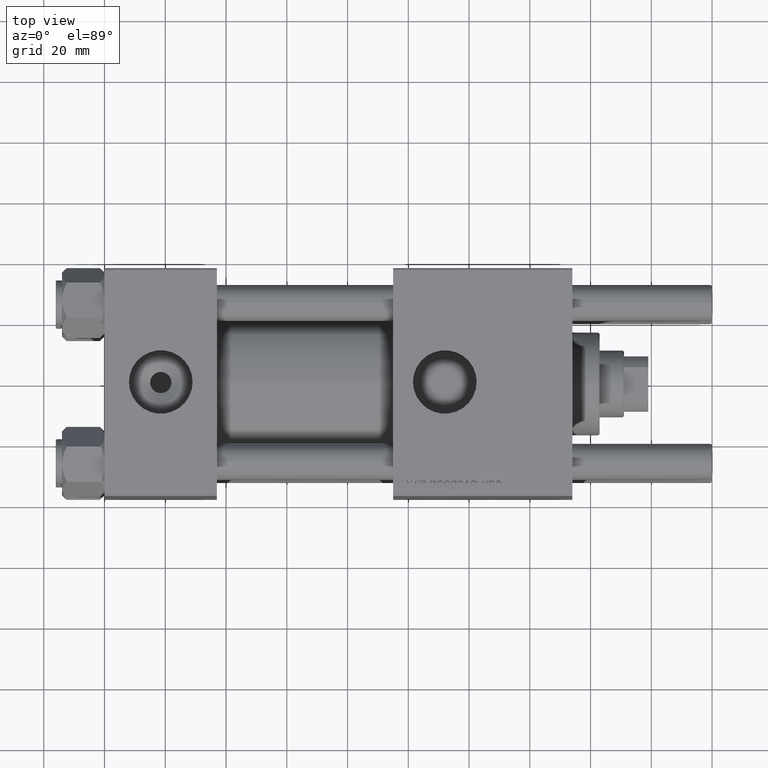
[diagram: clean part render]
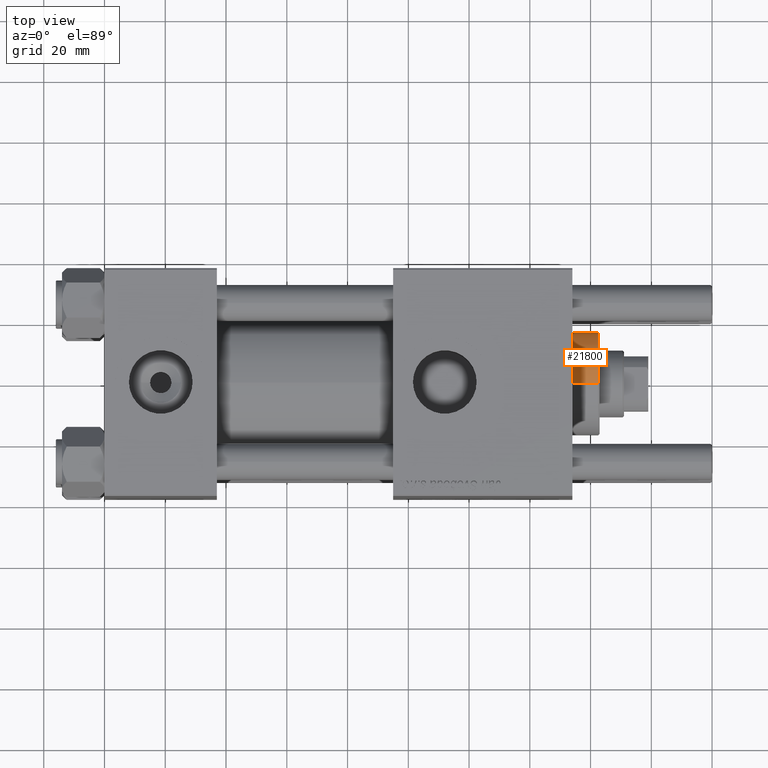
[diagram: same view with one face highlighted and labeled with its STEP entity id]
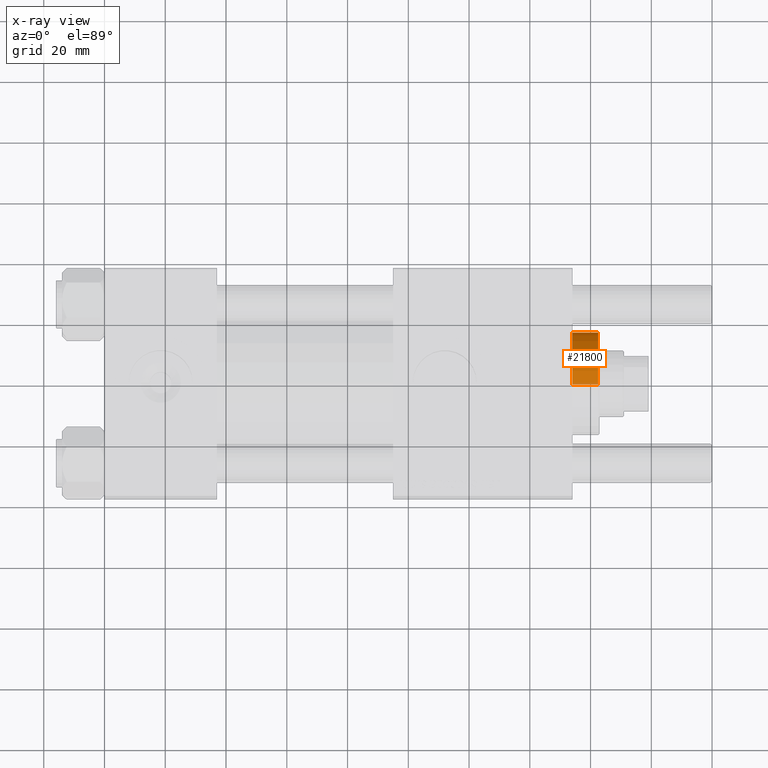
[diagram: x-ray of the same camera — body ghosted, the highlighted face saturated]
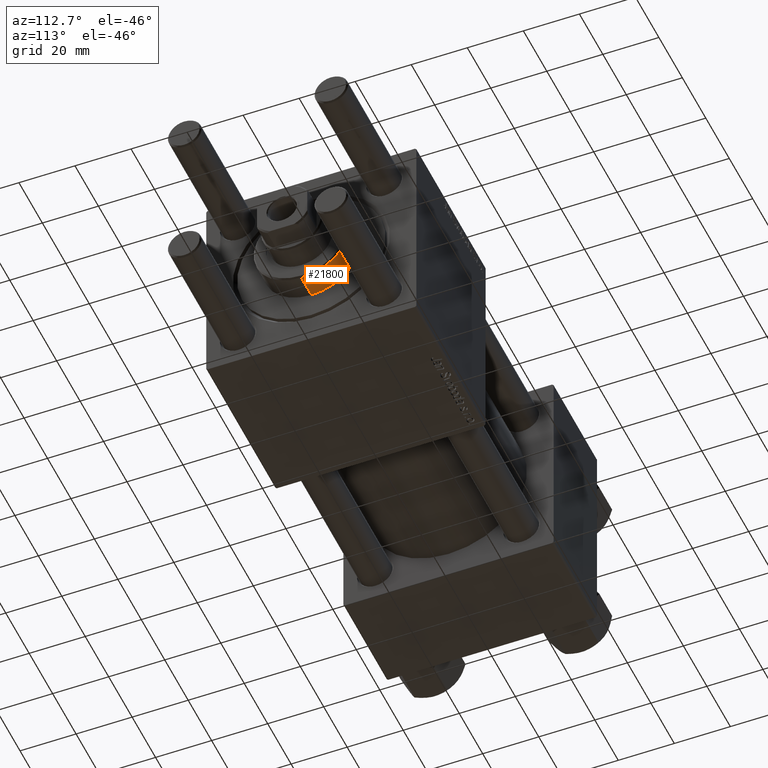
[diagram: same view with one face highlighted and labeled with its STEP entity id]
A machine part, top view. The second image highlights one B-rep face of the part: STEP entity #21800.
The next image is the same camera in x-ray: the body ghosted, the highlighted face saturated — about 3% of this face is hidden behind the body in this view.
A second angle (auxiliary view) of the same face is appended — the face is thin or edge-on in the first view.
In plain terms, the highlighted cylindrical surface (partial cylindrical patch) has radius 17 mm, axis along (-1, -0, 0).
Its self-contained STEP definition (entity closure, byte-faithful):
#550 = AXIS2_PLACEMENT_3D ( 'NONE', #53589, #34944, #22036 ) ;
#1361 = CARTESIAN_POINT ( 'NONE',  ( -17.00000000000000000, 0.000000000000000000, 37.69999999999999574 ) ) ;
#2387 = CIRCLE ( 'NONE', #550, 17.00000000000000000 ) ;
#4894 = CARTESIAN_POINT ( 'NONE',  ( 0.000000000000000000, 0.000000000000000000, 37.69999999999999574 ) ) ;
#7094 = LINE ( 'NONE', #37191, #30802 ) ;
#7324 = CARTESIAN_POINT ( 'NONE',  ( -17.00000000000000000, 0.000000000000000000, 28.69999999999999929 ) ) ;
#8331 = CARTESIAN_POINT ( 'NONE',  ( 0.000000000000000000, 0.000000000000000000, 28.69999999999999929 ) ) ;
#10503 = DIRECTION ( 'NONE',  ( -0.000000000000000000, -0.000000000000000000, -1.000000000000000000 ) ) ;
#10844 = VECTOR ( 'NONE', #10503, 1000.000000000000000 ) ;
#12667 = VERTEX_POINT ( 'NONE', #7324 ) ;
#13028 = ORIENTED_EDGE ( 'NONE', *, *, #15668, .T. ) ;
#15668 = EDGE_CURVE ( 'NONE', #24080, #12667, #29574, .T. ) ;
#18701 = AXIS2_PLACEMENT_3D ( 'NONE', #4894, #45032, #40715 ) ;
#19314 = EDGE_LOOP ( 'NONE', ( #52042, #54386, #13028, #55136 ) ) ;
#20372 = CARTESIAN_POINT ( 'NONE',  ( -17.00000000000000000, 0.000000000000000000, 37.19999999999999574 ) ) ;
#21800 = ADVANCED_FACE ( 'NONE', ( #44172 ), #36137, .T. ) ;
#22036 = DIRECTION ( 'NONE',  ( 1.000000000000000000, 0.000000000000000000, 0.000000000000000000 ) ) ;
#23209 = AXIS2_PLACEMENT_3D ( 'NONE', #8331, #46772, #51924 ) ;
#23727 = DIRECTION ( 'NONE',  ( -0.000000000000000000, -0.000000000000000000, -1.000000000000000000 ) ) ;
#24080 = VERTEX_POINT ( 'NONE', #39482 ) ;
#28164 = EDGE_CURVE ( 'NONE', #39806, #24080, #7094, .T. ) ;
#29574 = CIRCLE ( 'NONE', #23209, 17.00000000000000000 ) ;
#30802 = VECTOR ( 'NONE', #23727, 1000.000000000000000 ) ;
#31451 = LINE ( 'NONE', #1361, #10844 ) ;
#34944 = DIRECTION ( 'NONE',  ( 0.000000000000000000, 0.000000000000000000, -1.000000000000000000 ) ) ;
#36137 = CYLINDRICAL_SURFACE ( 'NONE', #18701, 17.00000000000000000 ) ;
#37191 = CARTESIAN_POINT ( 'NONE',  ( 17.00000000000000000, 2.081899558550500280E-15, 37.69999999999999574 ) ) ;
#38951 = EDGE_CURVE ( 'NONE', #55443, #39806, #2387, .T. ) ;
#39482 = CARTESIAN_POINT ( 'NONE',  ( 17.00000000000000000, 2.081899558550500280E-15, 28.69999999999999929 ) ) ;
#39806 = VERTEX_POINT ( 'NONE', #42655 ) ;
#40715 = DIRECTION ( 'NONE',  ( -1.000000000000000000, 0.000000000000000000, 0.000000000000000000 ) ) ;
#42655 = CARTESIAN_POINT ( 'NONE',  ( 17.00000000000000000, 2.081899558550500280E-15, 37.19999999999999574 ) ) ;
#44172 = FACE_OUTER_BOUND ( 'NONE', #19314, .T. ) ;
#45032 = DIRECTION ( 'NONE',  ( -0.000000000000000000, -0.000000000000000000, -1.000000000000000000 ) ) ;
#46772 = DIRECTION ( 'NONE',  ( 0.000000000000000000, 0.000000000000000000, 1.000000000000000000 ) ) ;
#51864 = EDGE_CURVE ( 'NONE', #55443, #12667, #31451, .T. ) ;
#51924 = DIRECTION ( 'NONE',  ( 1.000000000000000000, 0.000000000000000000, 0.000000000000000000 ) ) ;
#52042 = ORIENTED_EDGE ( 'NONE', *, *, #38951, .T. ) ;
#53589 = CARTESIAN_POINT ( 'NONE',  ( 0.000000000000000000, 0.000000000000000000, 37.19999999999999574 ) ) ;
#54386 = ORIENTED_EDGE ( 'NONE', *, *, #28164, .T. ) ;
#55136 = ORIENTED_EDGE ( 'NONE', *, *, #51864, .F. ) ;
#55443 = VERTEX_POINT ( 'NONE', #20372 ) ;